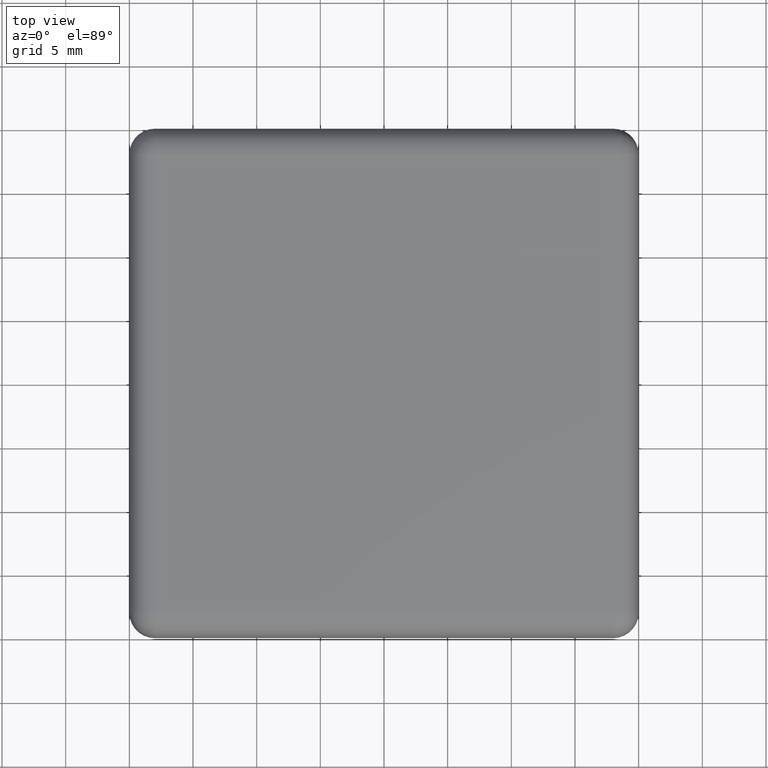
[diagram: clean part render]
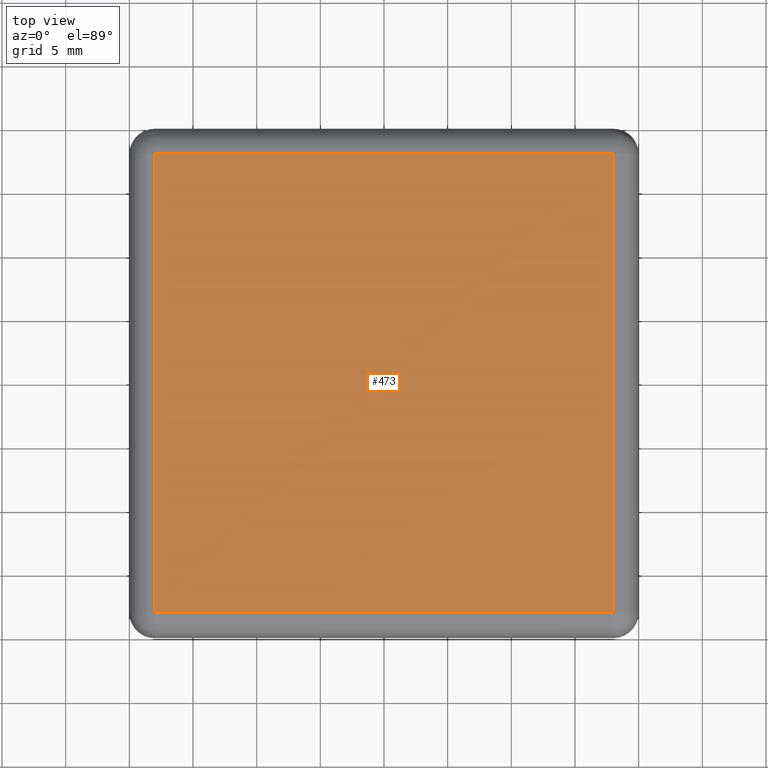
[diagram: same view with one face highlighted and labeled with its STEP entity id]
A machine part, top view. The second image highlights one B-rep face of the part: STEP entity #473.
In plain terms, the highlighted planar face has unit normal (0, 0, 1).
Its self-contained STEP definition (entity closure, byte-faithful):
#19=LINE('',#800,#39);
#21=LINE('',#808,#41);
#22=LINE('',#810,#42);
#23=LINE('',#811,#43);
#39=VECTOR('',#649,36.);
#41=VECTOR('',#657,36.);
#42=VECTOR('',#658,36.);
#43=VECTOR('',#659,36.);
#66=PLANE('',#535);
#129=FACE_OUTER_BOUND('',#183,.T.);
#183=EDGE_LOOP('',(#376,#377,#378,#379));
#261=VERTEX_POINT('',#798);
#262=VERTEX_POINT('',#799);
#265=VERTEX_POINT('',#807);
#266=VERTEX_POINT('',#809);
#301=EDGE_CURVE('',#261,#262,#19,.T.);
#305=EDGE_CURVE('',#265,#261,#21,.T.);
#306=EDGE_CURVE('',#266,#265,#22,.T.);
#307=EDGE_CURVE('',#262,#266,#23,.T.);
#376=ORIENTED_EDGE('',*,*,#301,.F.);
#377=ORIENTED_EDGE('',*,*,#305,.F.);
#378=ORIENTED_EDGE('',*,*,#306,.F.);
#379=ORIENTED_EDGE('',*,*,#307,.F.);
#473=ADVANCED_FACE('',(#129),#66,.T.);
#535=AXIS2_PLACEMENT_3D('',#806,#655,#656);
#649=DIRECTION('',(1.,2.22044604925031E-16,0.));
#655=DIRECTION('center_axis',(0.,0.,1.));
#656=DIRECTION('ref_axis',(1.,0.,0.));
#657=DIRECTION('',(0.,1.,0.));
#658=DIRECTION('',(-1.,-1.11022302462516E-16,0.));
#659=DIRECTION('',(5.55111512312578E-17,-1.,0.));
#798=CARTESIAN_POINT('',(-18.,18.,3.));
#799=CARTESIAN_POINT('',(18.,18.,3.));
#800=CARTESIAN_POINT('',(10.,18.,3.));
#806=CARTESIAN_POINT('Origin',(2.22044604925031E-15,-4.44089209850063E-15,
3.));
#807=CARTESIAN_POINT('',(-18.,-18.,3.));
#808=CARTESIAN_POINT('',(-18.,9.99999999999999,3.));
#809=CARTESIAN_POINT('',(18.,-18.,3.));
#810=CARTESIAN_POINT('',(-10.,-18.,3.));
#811=CARTESIAN_POINT('',(18.,-10.,3.));